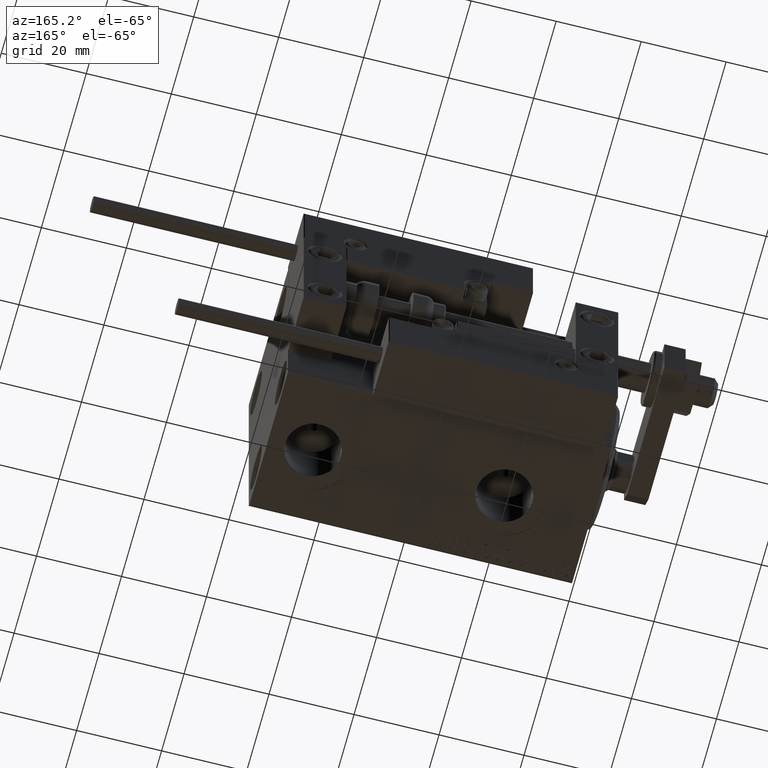
[diagram: clean part render]
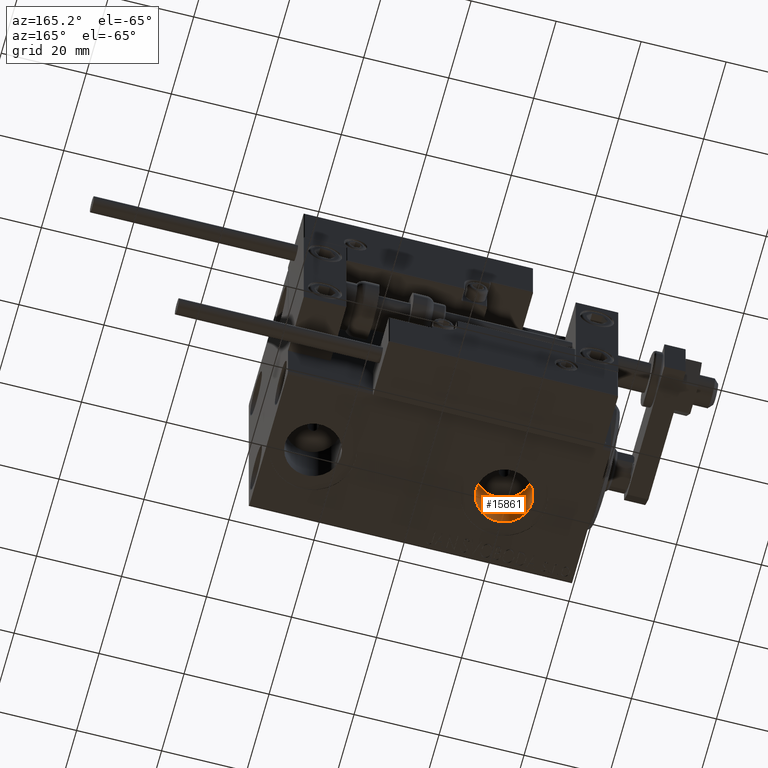
[diagram: same view with one face highlighted and labeled with its STEP entity id]
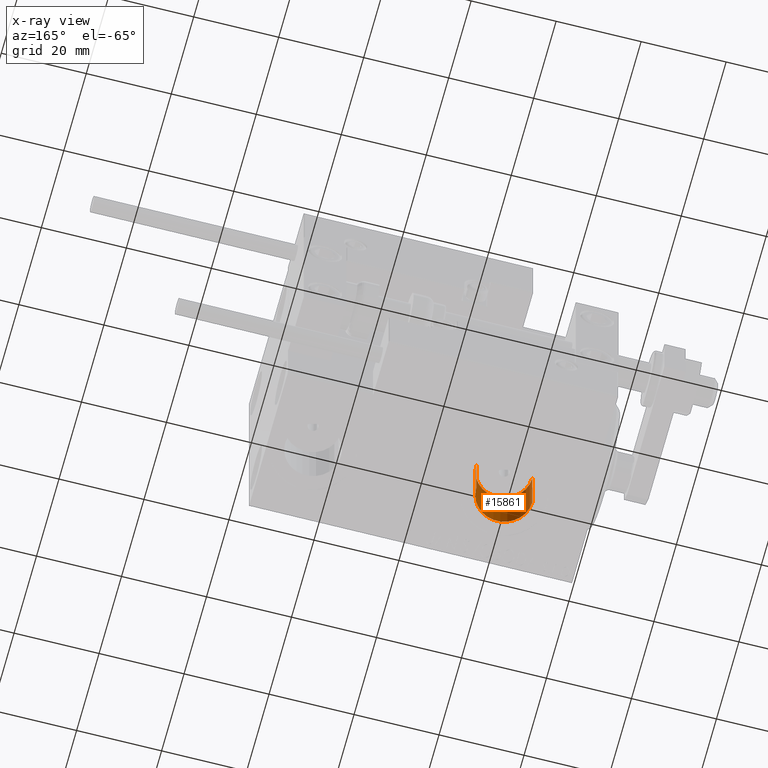
[diagram: x-ray of the same camera — body ghosted, the highlighted face saturated]
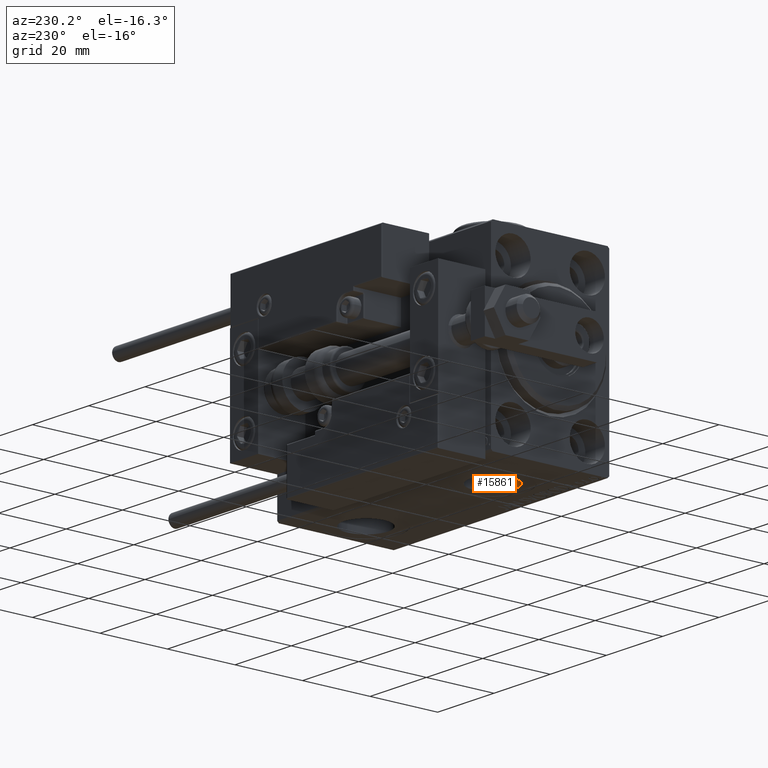
[diagram: same view with one face highlighted and labeled with its STEP entity id]
A machine part, auxiliary view. The second image highlights one B-rep face of the part: STEP entity #15861.
The next image is the same camera in x-ray: the body ghosted, the highlighted face saturated — about 0% of this face is hidden behind the body in this view.
A second angle (auxiliary view) of the same face is appended — the face is thin or edge-on in the first view.
In plain terms, the highlighted cylindrical surface (edge-blend (fillet) strip) has radius 6.58 mm, axis along (-0, -0, -1).
Its self-contained STEP definition (entity closure, byte-faithful):
#198 = CARTESIAN_POINT ( 'NONE',  ( 27.08000000000000540, -1.921168617569958028E-15, -14.50000000000000355 ) ) ;
#1148 = CARTESIAN_POINT ( 'NONE',  ( 20.50000000000000355, -2.726986211408916281E-15, -14.50000000000000355 ) ) ;
#3504 = CARTESIAN_POINT ( 'NONE',  ( 13.92000000000000171, -2.726986211408916281E-15, -27.40000000000000568 ) ) ;
#6664 = VECTOR ( 'NONE', #32570, 1000.000000000000000 ) ;
#7723 = EDGE_CURVE ( 'NONE', #26039, #39612, #43119, .T. ) ;
#9706 = ORIENTED_EDGE ( 'NONE', *, *, #28515, .F. ) ;
#11104 = VERTEX_POINT ( 'NONE', #14821 ) ;
#14482 = DIRECTION ( 'NONE',  ( -1.000000000000000000, 0.000000000000000000, 0.000000000000000000 ) ) ;
#14821 = CARTESIAN_POINT ( 'NONE',  ( 13.92000000000000171, -2.726986211408916281E-15, -14.50000000000000355 ) ) ;
#14949 = EDGE_CURVE ( 'NONE', #28319, #26039, #32919, .T. ) ;
#15861 = ADVANCED_FACE ( 'NONE', ( #36884 ), #24373, .F. ) ;
#16527 = ORIENTED_EDGE ( 'NONE', *, *, #7723, .T. ) ;
#16794 = DIRECTION ( 'NONE',  ( -1.000000000000000000, 0.000000000000000000, 0.000000000000000000 ) ) ;
#18014 = CARTESIAN_POINT ( 'NONE',  ( 27.08000000000000540, -1.921168617569958028E-15, -14.50000000000000355 ) ) ;
#18421 = AXIS2_PLACEMENT_3D ( 'NONE', #50487, #27269, #14482 ) ;
#21910 = EDGE_CURVE ( 'NONE', #11104, #39612, #47690, .T. ) ;
#23366 = EDGE_LOOP ( 'NONE', ( #9706, #49342, #16527, #23559 ) ) ;
#23463 = AXIS2_PLACEMENT_3D ( 'NONE', #1148, #24887, #16794 ) ;
#23559 = ORIENTED_EDGE ( 'NONE', *, *, #21910, .F. ) ;
#24373 = CYLINDRICAL_SURFACE ( 'NONE', #23463, 6.580000000000002736 ) ;
#24887 = DIRECTION ( 'NONE',  ( -0.000000000000000000, -0.000000000000000000, -1.000000000000000000 ) ) ;
#25760 = DIRECTION ( 'NONE',  ( 0.000000000000000000, 0.000000000000000000, -1.000000000000000000 ) ) ;
#26039 = VERTEX_POINT ( 'NONE', #33578 ) ;
#27269 = DIRECTION ( 'NONE',  ( 0.000000000000000000, 0.000000000000000000, -1.000000000000000000 ) ) ;
#28319 = VERTEX_POINT ( 'NONE', #198 ) ;
#28515 = EDGE_CURVE ( 'NONE', #28319, #11104, #35922, .T. ) ;
#29933 = CARTESIAN_POINT ( 'NONE',  ( 20.50000000000000355, -2.726986211408916281E-15, -27.40000000000000568 ) ) ;
#32570 = DIRECTION ( 'NONE',  ( -0.000000000000000000, -0.000000000000000000, -1.000000000000000000 ) ) ;
#32919 = LINE ( 'NONE', #18014, #50899 ) ;
#33578 = CARTESIAN_POINT ( 'NONE',  ( 27.08000000000000540, -1.921168617569958028E-15, -27.40000000000000568 ) ) ;
#35922 = CIRCLE ( 'NONE', #18421, 6.580000000000002736 ) ;
#36884 = FACE_OUTER_BOUND ( 'NONE', #23366, .T. ) ;
#39612 = VERTEX_POINT ( 'NONE', #3504 ) ;
#40998 = DIRECTION ( 'NONE',  ( -0.000000000000000000, -0.000000000000000000, -1.000000000000000000 ) ) ;
#43119 = CIRCLE ( 'NONE', #49786, 6.580000000000002736 ) ;
#44546 = CARTESIAN_POINT ( 'NONE',  ( 13.92000000000000171, -2.726986211408916281E-15, -14.50000000000000355 ) ) ;
#45583 = DIRECTION ( 'NONE',  ( -1.000000000000000000, 0.000000000000000000, 0.000000000000000000 ) ) ;
#47690 = LINE ( 'NONE', #44546, #6664 ) ;
#49342 = ORIENTED_EDGE ( 'NONE', *, *, #14949, .T. ) ;
#49786 = AXIS2_PLACEMENT_3D ( 'NONE', #29933, #25760, #45583 ) ;
#50487 = CARTESIAN_POINT ( 'NONE',  ( 20.50000000000000355, -2.726986211408916281E-15, -14.50000000000000355 ) ) ;
#50899 = VECTOR ( 'NONE', #40998, 1000.000000000000000 ) ;